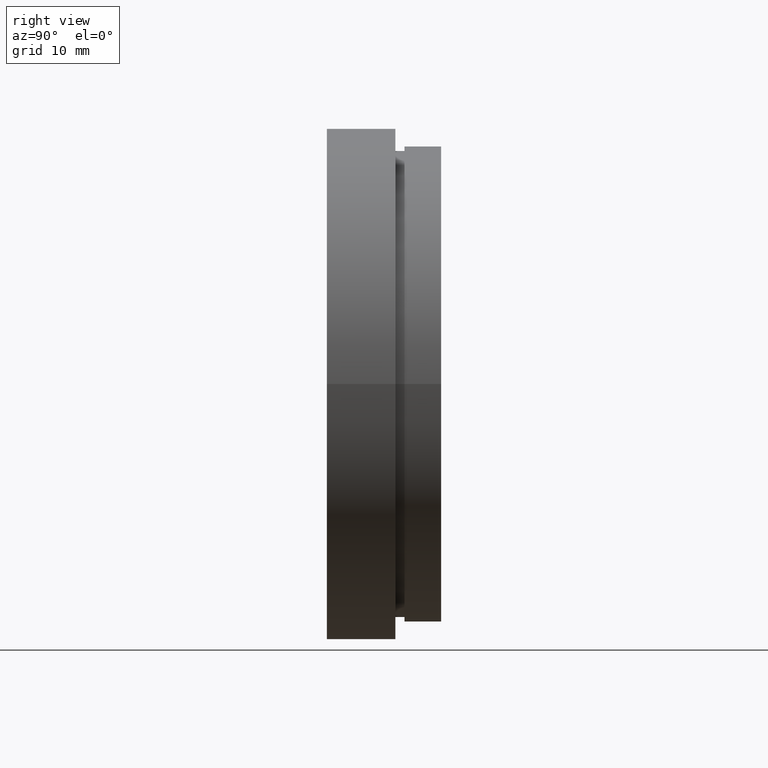
[diagram: clean part render]
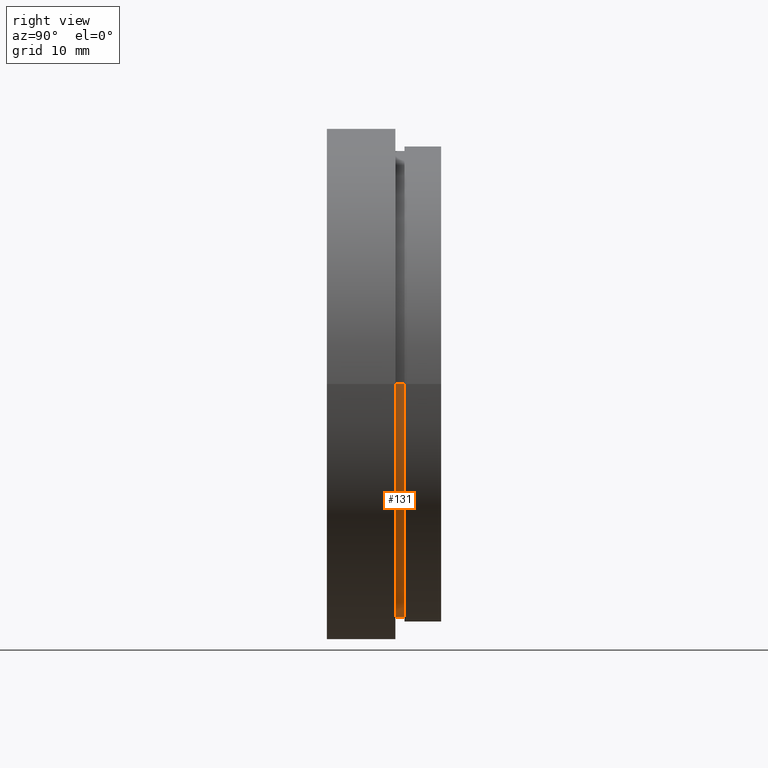
[diagram: same view with one face highlighted and labeled with its STEP entity id]
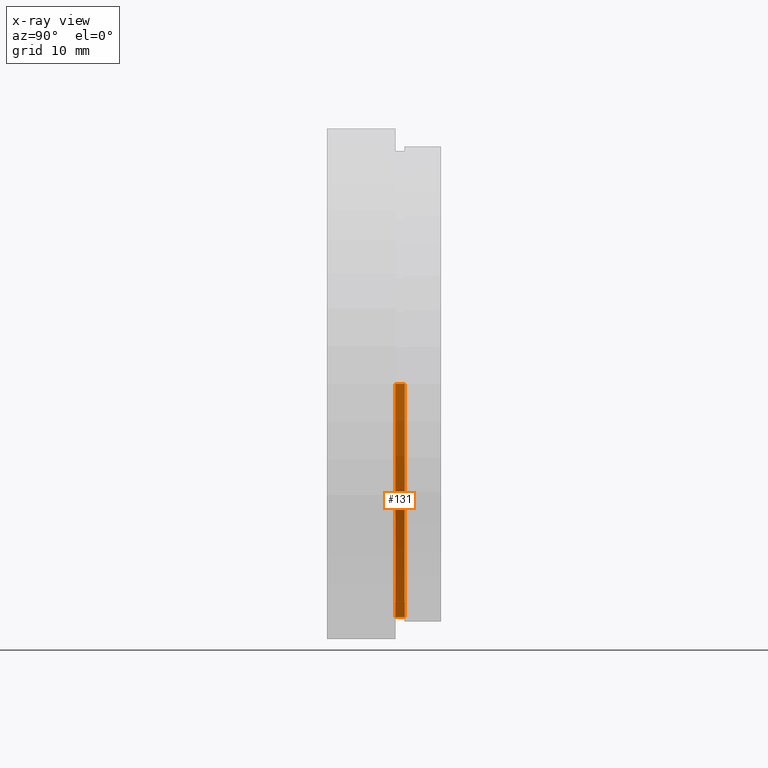
[diagram: x-ray of the same camera — body ghosted, the highlighted face saturated]
A machine part, right view. The second image highlights one B-rep face of the part: STEP entity #131.
The next image is the same camera in x-ray: the body ghosted, the highlighted face saturated — about 0% of this face is hidden behind the body in this view.
In plain terms, the highlighted cylindrical surface (partial cylindrical patch) has radius 25.5 mm, axis along (-0, 1, -0).
Its self-contained STEP definition (entity closure, byte-faithful):
#11 = AXIS2_PLACEMENT_3D ( 'NONE', #438, #481, #450 ) ;
#21 = ORIENTED_EDGE ( 'NONE', *, *, #493, .T. ) ;
#28 = DIRECTION ( 'NONE',  ( -1.000000000000000000, -1.360567432138672100E-016, 0.0000000000000000000 ) ) ;
#30 = CARTESIAN_POINT ( 'NONE',  ( 1.026991039163387900E-015, 8.499999999999996400, 0.0000000000000000000 ) ) ;
#53 = CYLINDRICAL_SURFACE ( 'NONE', #441, 25.50000000000000400 ) ;
#66 = AXIS2_PLACEMENT_3D ( 'NONE', #30, #78, #167 ) ;
#67 = VERTEX_POINT ( 'NONE', #576 ) ;
#71 = CARTESIAN_POINT ( 'NONE',  ( 0.0000000000000000000, 16.88601823708207700, 0.0000000000000000000 ) ) ;
#74 = DIRECTION ( 'NONE',  ( -1.224646799147351000E-016, 1.000000000000000000, -0.0000000000000000000 ) ) ;
#78 = DIRECTION ( 'NONE',  ( -1.224646799147351000E-016, 1.000000000000000000, -0.0000000000000000000 ) ) ;
#80 = LINE ( 'NONE', #498, #238 ) ;
#101 = CIRCLE ( 'NONE', #66, 25.50000000000000400 ) ;
#106 = VERTEX_POINT ( 'NONE', #495 ) ;
#131 = ADVANCED_FACE ( 'NONE', ( #230 ), #53, .T. ) ;
#147 = EDGE_CURVE ( 'NONE', #106, #240, #358, .T. ) ;
#167 = DIRECTION ( 'NONE',  ( -1.000000000000000000, -1.360567432138672100E-016, 0.0000000000000000000 ) ) ;
#204 = EDGE_LOOP ( 'NONE', ( #423, #617, #21, #533 ) ) ;
#230 = FACE_OUTER_BOUND ( 'NONE', #204, .T. ) ;
#238 = VECTOR ( 'NONE', #74, 1000.000000000000000 ) ;
#240 = VERTEX_POINT ( 'NONE', #608 ) ;
#268 = DIRECTION ( 'NONE',  ( -1.224646799147351000E-016, 1.000000000000000000, -0.0000000000000000000 ) ) ;
#314 = EDGE_CURVE ( 'NONE', #106, #319, #569, .T. ) ;
#319 = VERTEX_POINT ( 'NONE', #567 ) ;
#320 = DIRECTION ( 'NONE',  ( -1.224646799147351000E-016, 1.000000000000000000, -0.0000000000000000000 ) ) ;
#358 = LINE ( 'NONE', #555, #578 ) ;
#423 = ORIENTED_EDGE ( 'NONE', *, *, #147, .F. ) ;
#438 = CARTESIAN_POINT ( 'NONE',  ( 1.149455719078123100E-015, 7.499999999999996400, 0.0000000000000000000 ) ) ;
#441 = AXIS2_PLACEMENT_3D ( 'NONE', #71, #268, #28 ) ;
#450 = DIRECTION ( 'NONE',  ( -1.000000000000000000, -1.360567432138672100E-016, 0.0000000000000000000 ) ) ;
#459 = EDGE_CURVE ( 'NONE', #240, #67, #101, .T. ) ;
#481 = DIRECTION ( 'NONE',  ( -1.224646799147351000E-016, 1.000000000000000000, -0.0000000000000000000 ) ) ;
#493 = EDGE_CURVE ( 'NONE', #319, #67, #80, .T. ) ;
#495 = CARTESIAN_POINT ( 'NONE',  ( 25.50000000000000400, 7.500000000000000000, 3.122849337825751000E-015 ) ) ;
#498 = CARTESIAN_POINT ( 'NONE',  ( -25.50000000000000400, 16.88601823708207300, 0.0000000000000000000 ) ) ;
#533 = ORIENTED_EDGE ( 'NONE', *, *, #459, .F. ) ;
#555 = CARTESIAN_POINT ( 'NONE',  ( 25.50000000000000400, 16.88601823708208000, 3.122849337825751000E-015 ) ) ;
#567 = CARTESIAN_POINT ( 'NONE',  ( -25.50000000000000400, 7.499999999999992900, 0.0000000000000000000 ) ) ;
#569 = CIRCLE ( 'NONE', #11, 25.50000000000000400 ) ;
#576 = CARTESIAN_POINT ( 'NONE',  ( -25.50000000000000400, 8.499999999999992900, 0.0000000000000000000 ) ) ;
#578 = VECTOR ( 'NONE', #320, 1000.000000000000000 ) ;
#608 = CARTESIAN_POINT ( 'NONE',  ( 25.50000000000000400, 8.500000000000000000, 3.122849337825751000E-015 ) ) ;
#617 = ORIENTED_EDGE ( 'NONE', *, *, #314, .T. ) ;